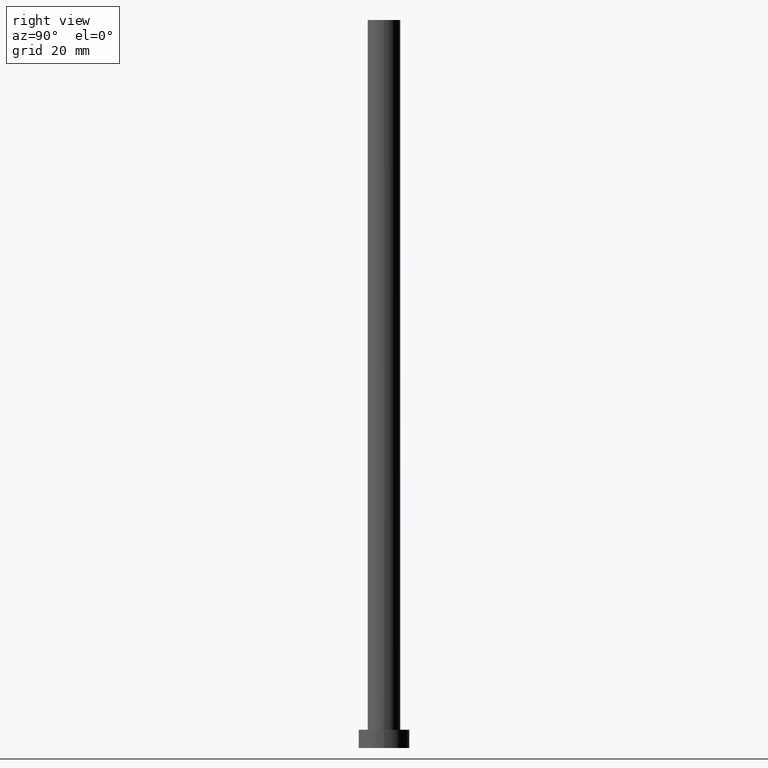
[diagram: clean part render]
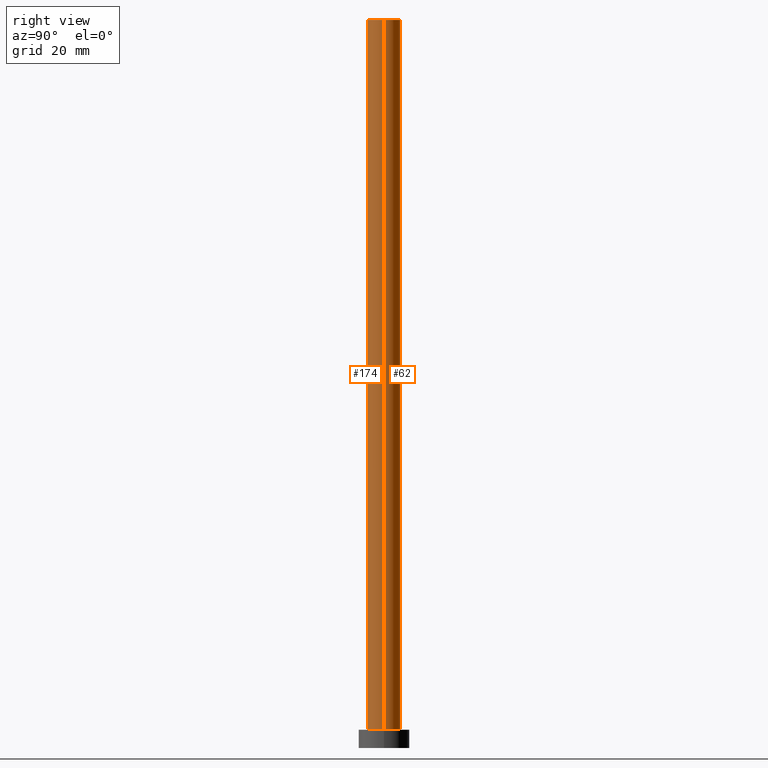
[diagram: same view with one multi-face feature highlighted, each face labeled with its STEP entity id]
A machine part, right view. The highlighted faces form ONE feature: a constant-radius fillet chain: 2 tangent blend faces with common blend radius 4.5 mm. The faces share edges in the B-rep.
Their STEP definitions:
[1] entity #174 (Cylinder):
#12 = ORIENTED_EDGE ( 'NONE', *, *, #86, .F. ) ;
#18 = CARTESIAN_POINT ( 'NONE',  ( -4.500000000000000888, 0.000000000000000000, 5.000000000000000000 ) ) ;
#21 = VERTEX_POINT ( 'NONE', #235 ) ;
#22 = AXIS2_PLACEMENT_3D ( 'NONE', #50, #35, #242 ) ;
#35 = DIRECTION ( 'NONE',  ( -0.000000000000000000, -0.000000000000000000, -1.000000000000000000 ) ) ;
#38 = DIRECTION ( 'NONE',  ( -0.000000000000000000, -0.000000000000000000, -1.000000000000000000 ) ) ;
#50 = CARTESIAN_POINT ( 'NONE',  ( 0.000000000000000000, 0.000000000000000000, 200.0000000000000000 ) ) ;
#54 = CARTESIAN_POINT ( 'NONE',  ( -4.500000000000000888, 0.000000000000000000, 200.0000000000000000 ) ) ;
#63 = VECTOR ( 'NONE', #75, 1000.000000000000000 ) ;
#67 = EDGE_CURVE ( 'NONE', #21, #146, #90, .T. ) ;
#70 = AXIS2_PLACEMENT_3D ( 'NONE', #139, #239, #197 ) ;
#75 = DIRECTION ( 'NONE',  ( -0.000000000000000000, -0.000000000000000000, -1.000000000000000000 ) ) ;
#79 = CIRCLE ( 'NONE', #70, 4.500000000000000888 ) ;
#85 = CIRCLE ( 'NONE', #184, 4.500000000000000888 ) ;
#86 = EDGE_CURVE ( 'NONE', #156, #21, #79, .T. ) ;
#90 = LINE ( 'NONE', #122, #63 ) ;
#96 = CARTESIAN_POINT ( 'NONE',  ( 0.000000000000000000, 0.000000000000000000, 5.000000000000000000 ) ) ;
#99 = EDGE_LOOP ( 'NONE', ( #101, #12, #211, #246 ) ) ;
#101 = ORIENTED_EDGE ( 'NONE', *, *, #67, .F. ) ;
#122 = CARTESIAN_POINT ( 'NONE',  ( 4.500000000000000888, 5.510910596163089556E-16, 200.0000000000000000 ) ) ;
#139 = CARTESIAN_POINT ( 'NONE',  ( 0.000000000000000000, 0.000000000000000000, 200.0000000000000000 ) ) ;
#146 = VERTEX_POINT ( 'NONE', #165 ) ;
#147 = FACE_OUTER_BOUND ( 'NONE', #99, .T. ) ;
#156 = VERTEX_POINT ( 'NONE', #238 ) ;
#165 = CARTESIAN_POINT ( 'NONE',  ( 4.500000000000000888, 5.510910596163089556E-16, 5.000000000000000000 ) ) ;
#173 = DIRECTION ( 'NONE',  ( 1.000000000000000000, 0.000000000000000000, 0.000000000000000000 ) ) ;
#174 = ADVANCED_FACE ( 'NONE', ( #147 ), #219, .T. ) ;
#175 = VERTEX_POINT ( 'NONE', #18 ) ;
#184 = AXIS2_PLACEMENT_3D ( 'NONE', #96, #207, #173 ) ;
#188 = VECTOR ( 'NONE', #38, 1000.000000000000000 ) ;
#193 = EDGE_CURVE ( 'NONE', #156, #175, #225, .T. ) ;
#197 = DIRECTION ( 'NONE',  ( 1.000000000000000000, 0.000000000000000000, 0.000000000000000000 ) ) ;
#207 = DIRECTION ( 'NONE',  ( 0.000000000000000000, 0.000000000000000000, 1.000000000000000000 ) ) ;
#211 = ORIENTED_EDGE ( 'NONE', *, *, #193, .T. ) ;
#218 = EDGE_CURVE ( 'NONE', #175, #146, #85, .T. ) ;
#219 = CYLINDRICAL_SURFACE ( 'NONE', #22, 4.500000000000000888 ) ;
#225 = LINE ( 'NONE', #54, #188 ) ;
#235 = CARTESIAN_POINT ( 'NONE',  ( 4.500000000000000888, 5.510910596163089556E-16, 200.0000000000000000 ) ) ;
#238 = CARTESIAN_POINT ( 'NONE',  ( -4.500000000000000888, 0.000000000000000000, 200.0000000000000000 ) ) ;
#239 = DIRECTION ( 'NONE',  ( 0.000000000000000000, 0.000000000000000000, 1.000000000000000000 ) ) ;
#242 = DIRECTION ( 'NONE',  ( -1.000000000000000000, 0.000000000000000000, 0.000000000000000000 ) ) ;
#246 = ORIENTED_EDGE ( 'NONE', *, *, #218, .T. ) ;
[2] entity #62 (Cylinder):
#5 = DIRECTION ( 'NONE',  ( 1.000000000000000000, 0.000000000000000000, 0.000000000000000000 ) ) ;
#18 = CARTESIAN_POINT ( 'NONE',  ( -4.500000000000000888, 0.000000000000000000, 5.000000000000000000 ) ) ;
#20 = CIRCLE ( 'NONE', #137, 4.500000000000000888 ) ;
#21 = VERTEX_POINT ( 'NONE', #235 ) ;
#24 = EDGE_LOOP ( 'NONE', ( #182, #251, #192, #231 ) ) ;
#33 = AXIS2_PLACEMENT_3D ( 'NONE', #69, #142, #47 ) ;
#38 = DIRECTION ( 'NONE',  ( -0.000000000000000000, -0.000000000000000000, -1.000000000000000000 ) ) ;
#47 = DIRECTION ( 'NONE',  ( 1.000000000000000000, 0.000000000000000000, 0.000000000000000000 ) ) ;
#54 = CARTESIAN_POINT ( 'NONE',  ( -4.500000000000000888, 0.000000000000000000, 200.0000000000000000 ) ) ;
#62 = ADVANCED_FACE ( 'NONE', ( #166 ), #179, .T. ) ;
#63 = VECTOR ( 'NONE', #75, 1000.000000000000000 ) ;
#67 = EDGE_CURVE ( 'NONE', #21, #146, #90, .T. ) ;
#68 = CARTESIAN_POINT ( 'NONE',  ( 0.000000000000000000, 0.000000000000000000, 200.0000000000000000 ) ) ;
#69 = CARTESIAN_POINT ( 'NONE',  ( 0.000000000000000000, 0.000000000000000000, 5.000000000000000000 ) ) ;
#75 = DIRECTION ( 'NONE',  ( -0.000000000000000000, -0.000000000000000000, -1.000000000000000000 ) ) ;
#87 = EDGE_CURVE ( 'NONE', #21, #156, #20, .T. ) ;
#90 = LINE ( 'NONE', #122, #63 ) ;
#109 = EDGE_CURVE ( 'NONE', #146, #175, #196, .T. ) ;
#122 = CARTESIAN_POINT ( 'NONE',  ( 4.500000000000000888, 5.510910596163089556E-16, 200.0000000000000000 ) ) ;
#137 = AXIS2_PLACEMENT_3D ( 'NONE', #163, #185, #5 ) ;
#142 = DIRECTION ( 'NONE',  ( 0.000000000000000000, 0.000000000000000000, 1.000000000000000000 ) ) ;
#145 = DIRECTION ( 'NONE',  ( -0.000000000000000000, -0.000000000000000000, -1.000000000000000000 ) ) ;
#146 = VERTEX_POINT ( 'NONE', #165 ) ;
#156 = VERTEX_POINT ( 'NONE', #238 ) ;
#161 = DIRECTION ( 'NONE',  ( -1.000000000000000000, 0.000000000000000000, 0.000000000000000000 ) ) ;
#163 = CARTESIAN_POINT ( 'NONE',  ( 0.000000000000000000, 0.000000000000000000, 200.0000000000000000 ) ) ;
#165 = CARTESIAN_POINT ( 'NONE',  ( 4.500000000000000888, 5.510910596163089556E-16, 5.000000000000000000 ) ) ;
#166 = FACE_OUTER_BOUND ( 'NONE', #24, .T. ) ;
#168 = AXIS2_PLACEMENT_3D ( 'NONE', #68, #145, #161 ) ;
#175 = VERTEX_POINT ( 'NONE', #18 ) ;
#179 = CYLINDRICAL_SURFACE ( 'NONE', #168, 4.500000000000000888 ) ;
#182 = ORIENTED_EDGE ( 'NONE', *, *, #87, .F. ) ;
#185 = DIRECTION ( 'NONE',  ( 0.000000000000000000, 0.000000000000000000, 1.000000000000000000 ) ) ;
#188 = VECTOR ( 'NONE', #38, 1000.000000000000000 ) ;
#192 = ORIENTED_EDGE ( 'NONE', *, *, #109, .T. ) ;
#193 = EDGE_CURVE ( 'NONE', #156, #175, #225, .T. ) ;
#196 = CIRCLE ( 'NONE', #33, 4.500000000000000888 ) ;
#225 = LINE ( 'NONE', #54, #188 ) ;
#231 = ORIENTED_EDGE ( 'NONE', *, *, #193, .F. ) ;
#235 = CARTESIAN_POINT ( 'NONE',  ( 4.500000000000000888, 5.510910596163089556E-16, 200.0000000000000000 ) ) ;
#238 = CARTESIAN_POINT ( 'NONE',  ( -4.500000000000000888, 0.000000000000000000, 200.0000000000000000 ) ) ;
#251 = ORIENTED_EDGE ( 'NONE', *, *, #67, .T. ) ;